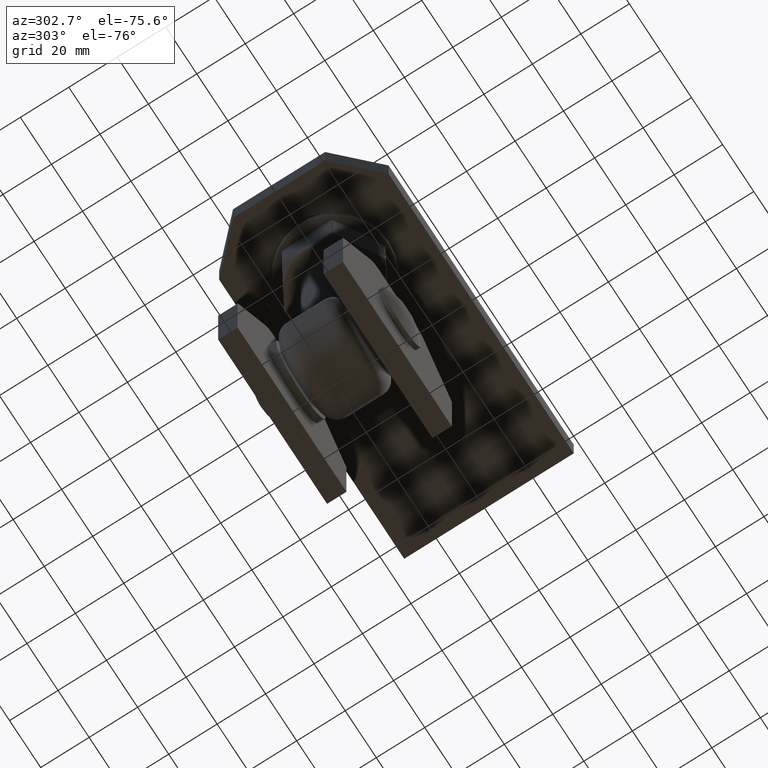
[diagram: clean part render]
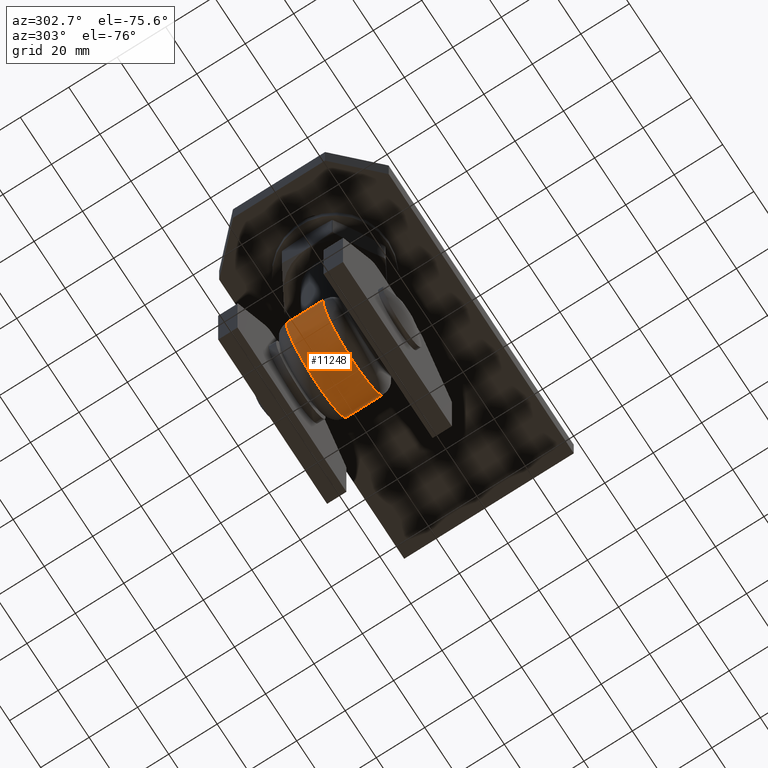
[diagram: same view with one face highlighted and labeled with its STEP entity id]
A machine part, auxiliary view. The second image highlights one B-rep face of the part: STEP entity #11248.
In plain terms, the highlighted cylindrical surface (partial cylindrical patch) has radius 19.5 mm, axis along (0, 1, 0).
Its self-contained STEP definition (entity closure, byte-faithful):
#51 = CARTESIAN_POINT ( 'NONE',  ( 9.781129533130721754, -6.983373128704642774, 16.87607550625752850 ) ) ;
#105 = CIRCLE ( 'NONE', #4678, 19.50000000000000355 ) ;
#605 = DIRECTION ( 'NONE',  ( 0.000000000000000000, -4.448008912761042820E-17, 1.000000000000000000 ) ) ;
#628 = AXIS2_PLACEMENT_3D ( 'NONE', #4771, #14049, #3684 ) ;
#952 = CARTESIAN_POINT ( 'NONE',  ( -9.780542078586927701, -6.984106859194670669, 16.87639726836266618 ) ) ;
#1046 = CARTESIAN_POINT ( 'NONE',  ( -11.53108659966926197, 3.389649546585047357, 15.72772334051255783 ) ) ;
#1083 = CARTESIAN_POINT ( 'NONE',  ( 9.367496997597603681, -7.499999999999998224, 17.10263137648707144 ) ) ;
#1096 = CARTESIAN_POINT ( 'NONE',  ( -11.92258110924584358, -1.404019948069251456, 15.43060433168016843 ) ) ;
#1146 = CARTESIAN_POINT ( 'NONE',  ( -11.52718911388292433, -3.403543576527033654, 15.73062372476579895 ) ) ;
#1181 = CARTESIAN_POINT ( 'NONE',  ( 11.99950848992903651, 0.3653562487045060592, 15.37080988013241090 ) ) ;
#1223 = CARTESIAN_POINT ( 'NONE',  ( 11.70059818121784367, 2.749489313179397598, 15.60025632934052453 ) ) ;
#1437 = B_SPLINE_CURVE_WITH_KNOTS ( 'NONE', 3,
 ( #6874, #2208, #3452, #3354, #11536, #8041, #14997, #12750, #1223, #12643, #5714, #10331, #1181, #11497, #4483, #4534, #9347, #7988, #11441, #13770, #51, #1083 ),
 .UNSPECIFIED., .F., .F.,
 ( 4, 2, 2, 2, 2, 2, 2, 2, 2, 2, 4 ),
 ( 0.000000000000000000, 0.002070704177477207444, 0.003106056266215812250, 0.004141408354954416622, 0.006212112532431624499, 0.007247464621170227571, 0.008282816709908831510, 0.01035352088738603939, 0.01242422506486324726, 0.01449492924234045341, 0.01656563341981765955 ),
 .UNSPECIFIED. ) ;
#1509 = DIRECTION ( 'NONE',  ( 0.000000000000000000, -4.448008912761042820E-17, 1.000000000000000000 ) ) ;
#1558 = EDGE_CURVE ( 'NONE', #5649, #3279, #105, .T. ) ;
#1826 = CARTESIAN_POINT ( 'NONE',  ( 0.000000000000000000, -7.499999999999999112, -1.700898332149101992E-16 ) ) ;
#2208 = CARTESIAN_POINT ( 'NONE',  ( 9.780542078586925925, 6.984106859194669781, 16.87639726836266973 ) ) ;
#2222 = CARTESIAN_POINT ( 'NONE',  ( -10.78019130122389768, -5.281928928626517639, 16.25008860996173965 ) ) ;
#2624 = CARTESIAN_POINT ( 'NONE',  ( -9.367496997597601904, 7.499999999999999112, 17.10263137648707144 ) ) ;
#3279 = VERTEX_POINT ( 'NONE', #14141 ) ;
#3312 = CARTESIAN_POINT ( 'NONE',  ( -11.94153828106332504, 1.367534193224968941, 15.41658978764669818 ) ) ;
#3354 = CARTESIAN_POINT ( 'NONE',  ( 10.63033338455993793, 5.577151355689372814, 16.34877541896095821 ) ) ;
#3452 = CARTESIAN_POINT ( 'NONE',  ( 10.14715394335886955, 6.439696211344619670, 16.65626155881995629 ) ) ;
#3684 = DIRECTION ( 'NONE',  ( 0.000000000000000000, 0.000000000000000000, 1.000000000000000000 ) ) ;
#3880 = CYLINDRICAL_SURFACE ( 'NONE', #628, 19.50000000000000355 ) ;
#4167 = EDGE_LOOP ( 'NONE', ( #11569, #8188, #5335, #9599 ) ) ;
#4449 = AXIS2_PLACEMENT_3D ( 'NONE', #6125, #7305, #1509 ) ;
#4483 = CARTESIAN_POINT ( 'NONE',  ( 11.94153828106332504, -1.367534193224969163, 15.41658978764669818 ) ) ;
#4534 = CARTESIAN_POINT ( 'NONE',  ( 11.70793265558650731, -2.719338011353384044, 15.59473918124071901 ) ) ;
#4678 = AXIS2_PLACEMENT_3D ( 'NONE', #1826, #9952, #605 ) ;
#4771 = CARTESIAN_POINT ( 'NONE',  ( 0.000000000000000000, 13.50000000000000000, 3.061616997868384127E-16 ) ) ;
#4948 = CIRCLE ( 'NONE', #4449, 19.50000000000000355 ) ;
#5335 = ORIENTED_EDGE ( 'NONE', *, *, #9142, .T. ) ;
#5649 = VERTEX_POINT ( 'NONE', #13701 ) ;
#5714 = CARTESIAN_POINT ( 'NONE',  ( 11.92258110924584358, 1.404019948069254786, 15.43060433168017553 ) ) ;
#5929 = EDGE_CURVE ( 'NONE', #14153, #7600, #4948, .T. ) ;
#6125 = CARTESIAN_POINT ( 'NONE',  ( 0.000000000000000000, 7.499999999999999112, 1.700898332149101992E-16 ) ) ;
#6842 = CARTESIAN_POINT ( 'NONE',  ( -11.18441490609111177, -4.361641049483763410, 15.97430800121725092 ) ) ;
#6874 = CARTESIAN_POINT ( 'NONE',  ( 9.367496997597601904, 7.499999999999999112, 17.10263137648707144 ) ) ;
#7305 = DIRECTION ( 'NONE',  ( -0.000000000000000000, 1.000000000000000000, 2.267864442865469507E-17 ) ) ;
#7512 = B_SPLINE_CURVE_WITH_KNOTS ( 'NONE', 3,
 ( #12605, #952, #13733, #7907, #2222, #9066, #6842, #1146, #9211, #11550, #1096, #14908, #11505, #10241, #3312, #8053, #1046, #11406, #9266, #10399, #14961, #7950 ),
 .UNSPECIFIED., .F., .F.,
 ( 4, 2, 2, 2, 2, 2, 2, 2, 2, 2, 4 ),
 ( 8.673617379884035472E-19, 0.002070704177477211347, 0.003106056266215815719, 0.004141408354954420092, 0.006212112532431627969, 0.007247464621170231908, 0.008282816709908834979, 0.01035352088738604459, 0.01242422506486325073, 0.01449492924234045688, 0.01656563341981766302 ),
 .UNSPECIFIED. ) ;
#7600 = VERTEX_POINT ( 'NONE', #2624 ) ;
#7907 = CARTESIAN_POINT ( 'NONE',  ( -10.63033338455994325, -5.577151355689373702, 16.34877541896096176 ) ) ;
#7950 = CARTESIAN_POINT ( 'NONE',  ( -9.367496997597601904, 7.499999999999999112, 17.10263137648707144 ) ) ;
#7988 = CARTESIAN_POINT ( 'NONE',  ( 11.07818096288811027, -4.661500699478640541, 16.04995782543615590 ) ) ;
#8041 = CARTESIAN_POINT ( 'NONE',  ( 11.05700009853793375, 4.674831175451916287, 16.06302129561943914 ) ) ;
#8053 = CARTESIAN_POINT ( 'NONE',  ( -11.70793265558650553, 2.719338011353383600, 15.59473918124071901 ) ) ;
#8188 = ORIENTED_EDGE ( 'NONE', *, *, #1558, .T. ) ;
#9066 = CARTESIAN_POINT ( 'NONE',  ( -11.05700009853794263, -4.674831175451912735, 16.06302129561944270 ) ) ;
#9142 = EDGE_CURVE ( 'NONE', #3279, #7600, #7512, .T. ) ;
#9211 = CARTESIAN_POINT ( 'NONE',  ( -11.70059818121784545, -2.749489313179394934, 15.60025632934052631 ) ) ;
#9266 = CARTESIAN_POINT ( 'NONE',  ( -10.80199384569966981, 5.268929287908791004, 16.23932128055219337 ) ) ;
#9347 = CARTESIAN_POINT ( 'NONE',  ( 11.53108659966926552, -3.389649546585046469, 15.72772334051256138 ) ) ;
#9599 = ORIENTED_EDGE ( 'NONE', *, *, #5929, .F. ) ;
#9952 = DIRECTION ( 'NONE',  ( -0.000000000000000000, 1.000000000000000000, 2.267864442865469507E-17 ) ) ;
#10241 = CARTESIAN_POINT ( 'NONE',  ( -12.00094891952178067, 0.6811620838058273231, 15.36968530957123313 ) ) ;
#10331 = CARTESIAN_POINT ( 'NONE',  ( 11.98358472016389698, 0.7161770561646221278, 15.38327623109158360 ) ) ;
#10399 = CARTESIAN_POINT ( 'NONE',  ( -10.15169046276216136, 6.433340316801252179, 16.65358242072235484 ) ) ;
#11248 = ADVANCED_FACE ( 'NONE', ( #14768 ), #3880, .T. ) ;
#11406 = CARTESIAN_POINT ( 'NONE',  ( -11.07818096288810494, 4.661500699478643206, 16.04995782543615945 ) ) ;
#11441 = CARTESIAN_POINT ( 'NONE',  ( 10.80199384569967158, -5.268929287908791004, 16.23932128055219337 ) ) ;
#11497 = CARTESIAN_POINT ( 'NONE',  ( 12.00094891952178067, -0.6811620838058268790, 15.36968530957123669 ) ) ;
#11505 = CARTESIAN_POINT ( 'NONE',  ( -11.99950848992904007, -0.3653562487045050045, 15.37080988013241800 ) ) ;
#11536 = CARTESIAN_POINT ( 'NONE',  ( 10.78019130122389413, 5.281928928626521191, 16.25008860996173610 ) ) ;
#11550 = CARTESIAN_POINT ( 'NONE',  ( -11.87754555850225202, -1.743511923132423869, 15.46542629029556615 ) ) ;
#11569 = ORIENTED_EDGE ( 'NONE', *, *, #14081, .T. ) ;
#11861 = CARTESIAN_POINT ( 'NONE',  ( 9.367496997597601904, 7.499999999999999112, 17.10263137648707144 ) ) ;
#12605 = CARTESIAN_POINT ( 'NONE',  ( -9.367496997597601904, -7.499999999999999112, 17.10263137648707144 ) ) ;
#12643 = CARTESIAN_POINT ( 'NONE',  ( 11.87754555850225202, 1.743511923132427865, 15.46542629029556792 ) ) ;
#12750 = CARTESIAN_POINT ( 'NONE',  ( 11.52718911388291900, 3.403543576527036763, 15.73062372476579185 ) ) ;
#13701 = CARTESIAN_POINT ( 'NONE',  ( 9.367496997597603681, -7.499999999999998224, 17.10263137648707144 ) ) ;
#13733 = CARTESIAN_POINT ( 'NONE',  ( -10.14715394335886955, -6.439696211344617893, 16.65626155881995274 ) ) ;
#13770 = CARTESIAN_POINT ( 'NONE',  ( 10.15169046276216491, -6.433340316801250403, 16.65358242072234773 ) ) ;
#14049 = DIRECTION ( 'NONE',  ( -0.000000000000000000, 1.000000000000000000, 2.267864442865469507E-17 ) ) ;
#14081 = EDGE_CURVE ( 'NONE', #14153, #5649, #1437, .T. ) ;
#14141 = CARTESIAN_POINT ( 'NONE',  ( -9.367496997597601904, -7.499999999999999112, 17.10263137648707144 ) ) ;
#14153 = VERTEX_POINT ( 'NONE', #11861 ) ;
#14768 = FACE_OUTER_BOUND ( 'NONE', #4167, .T. ) ;
#14908 = CARTESIAN_POINT ( 'NONE',  ( -11.98358472016389520, -0.7161770561646189082, 15.38327623109157649 ) ) ;
#14961 = CARTESIAN_POINT ( 'NONE',  ( -9.781129533130721754, 6.983373128704641886, 16.87607550625752495 ) ) ;
#14997 = CARTESIAN_POINT ( 'NONE',  ( 11.18441490609110822, 4.361641049483766963, 15.97430800121724737 ) ) ;